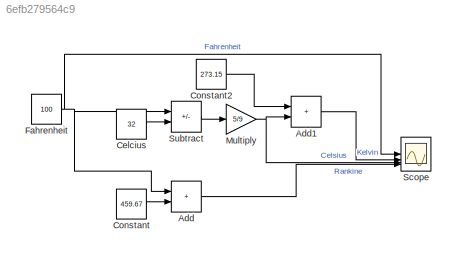
MODEL slx_6efb279564c9
KIND model
CONFIG AbsTol = auto
CONFIG EnableMultiTasking = off
CONFIG FixedStep = auto
CONFIG MaxStep = auto
CONFIG MinStep = auto
CONFIG RelTol = 1e-3
CONFIG SampleTimeConstraint = Unconstrained
CONFIG SolverName = VariableStepAuto
CONFIG StartTime = 0.0
CONFIG StopTime = 10.0
BLOCK [Sum] Add
  IconShape = rectangular
BLOCK [Sum] Add1
  IconShape = rectangular
BLOCK [Constant] Celcius
  Value = 32
BLOCK [Constant] Constant
  Value = 459.67
BLOCK [Constant] Constant2
  Value = 273.15
BLOCK [Constant] Fahrenheit
  Value = 100
BLOCK [Gain] Multiply
  Gain = 5/9
BLOCK [Scope] Scope
  ActiveDisplayYMaximum = 864.71377466808292
  ActiveDisplayYMinimum = -1014.9507057771345
  ContainerLayout = {"WindowBounds":[864,1363,647,765]}
  Floating = off
  GraphicalSettings = {"AxesScalingProperties":{"AlignXAxis":"Center","AlignYAxis":"Center","AutoScaleXAxisLimits":false,"AxesScaling":"Manual","AxesScalingNumUpdates":10,"ExpandOnly":true,"ScaleAxesLimitsAtStop":false,"XAxisDataRange":100,"YAxisDataRange":80},"DisplayProperties":{"ColorOrder":["auto","auto","auto","auto","auto","auto","auto","auto","auto","auto","auto","auto","auto","auto","auto","auto","auto","auto",...<+2341ch>
  MultipleDisplayCache = [{"MaxYLimMag":10,"MaxYLimReal":864.71377466808292,"MinYLimMag":0,"MinYLimReal":-1014.9507057771345,"PlotAsMagnitudePhase":false,"ShowGrid":true,"ShowLegend":true,"Title":"%<SignalLabel>","YLabel":"Temperature (°)"}]
  NumInputPorts = 4
  ShowLegend = on
  ShowTimeAxisLabel = on
  Visible = on
  WasSavedAsWebScope = on
  WindowPosition = [864.000000,30.000000,649.000000,768.000000,]
  YLabel = Temperature (°)
BLOCK [Sum] Subtract
  IconShape = rectangular
  Inputs = +-
LINE Add1:1 -> Scope:2
LINE Add:1 -> Scope:4
LINE Celcius:1 -> Subtract:2
LINE Constant2:1 -> Add1:1
LINE Constant:1 -> Add:2
NET Fahrenheit:1 -> Add:1, Scope:1, Subtract:1
NET Multiply:1 -> Add1:2, Scope:3
LINE Subtract:1 -> Multiply:1
note: NET lines group one-source signal fan-out (src -> all destinations, sorted); 1:1 wires keep LINE
